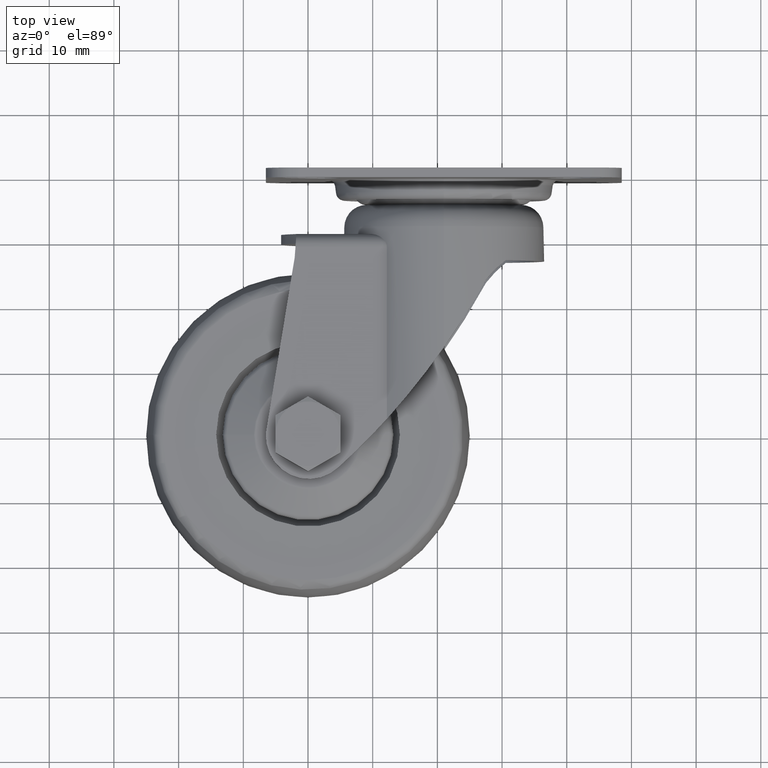
[diagram: clean part render]
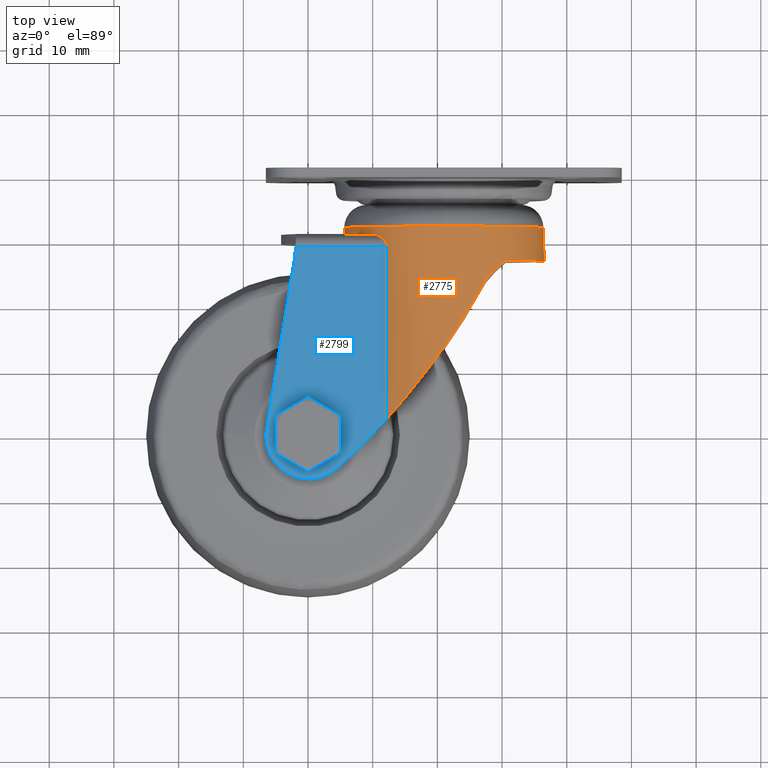
[diagram: same view with the hole feature highlighted: cylindrical wall and planar end face, labeled with their STEP entity ids]
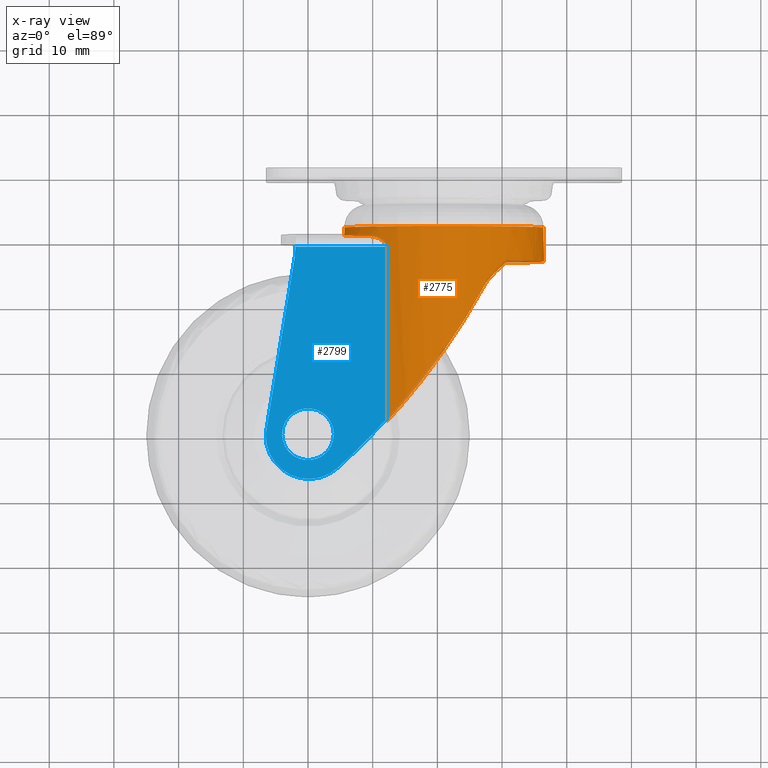
[diagram: x-ray of the same camera — body ghosted, the hole faces saturated]
A machine part, top view. The highlighted faces form one hole feature of diameter 31 mm: the cylindrical wall (entity #2775, orange) and its adjacent planar end face (entity #2799, blue) — they share a circular edge in the B-rep.
The next image is the same camera in x-ray (body ghosted, the hole faces saturated) — the bore reads through the body.
Wall:
#40=B_SPLINE_CURVE_WITH_KNOTS('',3,(#4908,#4909,#4910,#4911,#4912,#4913,
#4914,#4915),.UNSPECIFIED.,.F.,.F.,(4,2,2,4),(-7.70058691081264,-7.68832408808404,
-7.40377830427129,-7.25559388418982),.UNSPECIFIED.);
#42=B_SPLINE_CURVE_WITH_KNOTS('',3,(#4929,#4930,#4931,#4932,#4933,#4934,
#4935,#4936),.UNSPECIFIED.,.F.,.F.,(4,2,2,4),(-4.43775307126786,-4.28956865118639,
-4.00502286737364,-3.99276004464504),.UNSPECIFIED.);
#44=B_SPLINE_CURVE_WITH_KNOTS('',3,(#4946,#4947,#4948,#4949,#4950,#4951),
 .UNSPECIFIED.,.F.,.F.,(4,2,4),(-3.5105846150266,-2.92137387211645,-2.30902968361495),
 .UNSPECIFIED.);
#45=B_SPLINE_CURVE_WITH_KNOTS('',3,(#4953,#4954,#4955,#4956,#4957,#4958,
#4959,#4960),.UNSPECIFIED.,.F.,.F.,(4,2,2,4),(-4.90279050337366,-4.70047521491548,
-3.89516516282193,-3.5105846150266),.UNSPECIFIED.);
#48=B_SPLINE_CURVE_WITH_KNOTS('',3,(#4991,#4992,#4993,#4994,#4995,#4996,
#4997,#4998,#4999,#5000),.UNSPECIFIED.,.F.,.F.,(4,2,2,2,4),(-10.7383937355882,
-10.1260495470867,-9.15225825638122,-8.34694820428767,-8.14463291582949),
 .UNSPECIFIED.);
#51=B_SPLINE_CURVE_WITH_KNOTS('',3,(#5064,#5065,#5066,#5067,#5068,#5069,
#5070,#5071,#5072,#5073,#5074,#5075),.UNSPECIFIED.,.F.,.F.,(4,2,2,2,2,4),
(0.,0.038499645854395,0.0769992917087901,0.15399858341758,0.269915287120281,
0.385831990822983),.UNSPECIFIED.);
#52=B_SPLINE_CURVE_WITH_KNOTS('',3,(#5082,#5083,#5084,#5085,#5086,#5087,
#5088,#5089,#5090,#5091,#5092,#5093),.UNSPECIFIED.,.F.,.F.,(4,2,2,2,2,4),
(0.348422007007314,0.464338710710016,0.580255414412717,0.657254706121507,
0.695754351975902,0.734253997830297),.UNSPECIFIED.);
#198=LINE('',#5096,#327);
#199=LINE('',#5097,#328);
#200=LINE('',#5099,#329);
#327=VECTOR('',#3940,1000.);
#328=VECTOR('',#3941,1000.);
#329=VECTOR('',#3942,15.5);
#418=CYLINDRICAL_SURFACE('',#3259,15.5);
#638=FACE_OUTER_BOUND('',#836,.T.);
#836=EDGE_LOOP('',(#2245,#2246,#2247,#2248,#2249,#2250,#2251,#2252,#2253,
#2254,#2255,#2256,#2257,#2258));
#1032=CIRCLE('',#3255,15.5);
#1033=CIRCLE('',#3260,15.5);
#1034=CIRCLE('',#3261,15.5);
#1294=VERTEX_POINT('',#4897);
#1296=VERTEX_POINT('',#4906);
#1297=VERTEX_POINT('',#4917);
#1300=VERTEX_POINT('',#4927);
#1302=VERTEX_POINT('',#4945);
#1303=VERTEX_POINT('',#4952);
#1310=VERTEX_POINT('',#4989);
#1322=VERTEX_POINT('',#5055);
#1324=VERTEX_POINT('',#5059);
#1325=VERTEX_POINT('',#5063);
#1327=VERTEX_POINT('',#5080);
#1328=VERTEX_POINT('',#5098);
#1615=EDGE_CURVE('',#1296,#1294,#40,.T.);
#1619=EDGE_CURVE('',#1300,#1297,#42,.T.);
#1621=EDGE_CURVE('',#1302,#1297,#44,.T.);
#1622=EDGE_CURVE('',#1303,#1302,#45,.T.);
#1631=EDGE_CURVE('',#1296,#1310,#48,.T.);
#1651=EDGE_CURVE('',#1322,#1324,#1032,.F.);
#1652=EDGE_CURVE('',#1325,#1322,#51,.T.);
#1656=EDGE_CURVE('',#1324,#1327,#52,.T.);
#1657=EDGE_CURVE('',#1294,#1300,#1033,.T.);
#1658=EDGE_CURVE('',#1310,#1325,#198,.F.);
#1659=EDGE_CURVE('',#1327,#1303,#199,.T.);
#1660=EDGE_CURVE('',#1302,#1328,#200,.T.);
#1661=EDGE_CURVE('',#1328,#1328,#1034,.T.);
#2245=ORIENTED_EDGE('',*,*,#1657,.F.);
#2246=ORIENTED_EDGE('',*,*,#1615,.F.);
#2247=ORIENTED_EDGE('',*,*,#1631,.T.);
#2248=ORIENTED_EDGE('',*,*,#1658,.T.);
#2249=ORIENTED_EDGE('',*,*,#1652,.T.);
#2250=ORIENTED_EDGE('',*,*,#1651,.T.);
#2251=ORIENTED_EDGE('',*,*,#1656,.T.);
#2252=ORIENTED_EDGE('',*,*,#1659,.T.);
#2253=ORIENTED_EDGE('',*,*,#1622,.T.);
#2254=ORIENTED_EDGE('',*,*,#1660,.T.);
#2255=ORIENTED_EDGE('',*,*,#1661,.T.);
#2256=ORIENTED_EDGE('',*,*,#1660,.F.);
#2257=ORIENTED_EDGE('',*,*,#1621,.T.);
#2258=ORIENTED_EDGE('',*,*,#1619,.F.);
#2775=ADVANCED_FACE('',(#638),#418,.T.);
#3255=AXIS2_PLACEMENT_3D('',#5061,#3926,#3927);
#3259=AXIS2_PLACEMENT_3D('',#5094,#3936,#3937);
#3260=AXIS2_PLACEMENT_3D('',#5095,#3938,#3939);
#3261=AXIS2_PLACEMENT_3D('',#5100,#3943,#3944);
#3926=DIRECTION('center_axis',(0.,-1.,0.));
#3927=DIRECTION('ref_axis',(0.,0.,-1.));
#3936=DIRECTION('center_axis',(0.,-1.,0.));
#3937=DIRECTION('ref_axis',(0.,0.,-1.));
#3938=DIRECTION('center_axis',(0.,-1.,0.));
#3939=DIRECTION('ref_axis',(0.,0.,-1.));
#3940=DIRECTION('',(0.,-1.,0.));
#3941=DIRECTION('',(0.,-1.,0.));
#3942=DIRECTION('',(0.,1.,0.));
#3943=DIRECTION('center_axis',(0.,-1.,0.));
#3944=DIRECTION('ref_axis',(0.,0.,-1.));
#4897=CARTESIAN_POINT('',(30.56,26.93,-12.2006721126338));
#4906=CARTESIAN_POINT('',(27.5044218475587,23.8775764355235,-14.0692038306722));
#4908=CARTESIAN_POINT('Ctrl Pts',(27.5044218475586,23.8775764355236,-14.0692038306722));
#4909=CARTESIAN_POINT('Ctrl Pts',(27.5285332333845,23.9088010045437,-14.0580567446944));
#4910=CARTESIAN_POINT('Ctrl Pts',(27.552699437592,23.9398701399925,-14.0468090809169));
#4911=CARTESIAN_POINT('Ctrl Pts',(28.1388613394566,24.6880727293458,-13.7721377859539));
#4912=CARTESIAN_POINT('Ctrl Pts',(28.802456226853,25.4053601392409,-13.4179789251754));
#4913=CARTESIAN_POINT('Ctrl Pts',(29.8444249582645,26.3558513522208,-12.7360900512621));
#4914=CARTESIAN_POINT('Ctrl Pts',(30.2065595296403,26.6576581396606,-12.4776151257273));
#4915=CARTESIAN_POINT('Ctrl Pts',(30.56,26.9300000000001,-12.2006721126338));
#4917=CARTESIAN_POINT('',(27.5044218475587,23.8775764355235,14.0692038306722));
#4927=CARTESIAN_POINT('',(30.56,26.93,12.2006721126338));
#4929=CARTESIAN_POINT('Ctrl Pts',(30.56,26.9300000000001,12.2006721126338));
#4930=CARTESIAN_POINT('Ctrl Pts',(30.2065595296403,26.6576581396606,12.4776151257273));
#4931=CARTESIAN_POINT('Ctrl Pts',(29.8444249582645,26.3558513522208,12.7360900512621));
#4932=CARTESIAN_POINT('Ctrl Pts',(28.802456226853,25.4053601392409,13.4179789251754));
#4933=CARTESIAN_POINT('Ctrl Pts',(28.1388613394566,24.6880727293458,13.7721377859539));
#4934=CARTESIAN_POINT('Ctrl Pts',(27.552699437592,23.9398701399925,14.0468090809169));
#4935=CARTESIAN_POINT('Ctrl Pts',(27.5285332333845,23.9088010045437,14.0580567446944));
#4936=CARTESIAN_POINT('Ctrl Pts',(27.5044218475586,23.8775764355236,14.0692038306722));
#4945=CARTESIAN_POINT('',(20.9999999993719,13.4172627564216,15.5));
#4946=CARTESIAN_POINT('Ctrl Pts',(20.9999999987439,13.4172627564216,15.5));
#4947=CARTESIAN_POINT('Ctrl Pts',(22.1455090427555,15.0519060120486,15.5000000000928));
#4948=CARTESIAN_POINT('Ctrl Pts',(23.2605521457565,16.7365953137142,15.3733256528201));
#4949=CARTESIAN_POINT('Ctrl Pts',(25.4415940204694,20.2354447913942,14.8935388269375));
#4950=CARTESIAN_POINT('Ctrl Pts',(26.5038776426646,22.0520611694618,14.5317716962094));
#4951=CARTESIAN_POINT('Ctrl Pts',(27.5044218475587,23.8775764355235,14.0692038306722));
#4952=CARTESIAN_POINT('',(12.1859487180979,2.3878826457038,12.75));
#4953=CARTESIAN_POINT('Ctrl Pts',(12.1859487180979,2.38788264570376,12.75));
#4954=CARTESIAN_POINT('Ctrl Pts',(12.6216812101643,2.86778718234861,13.0512210611972));
#4955=CARTESIAN_POINT('Ctrl Pts',(13.0652358145193,3.36471401795708,13.3247815701268));
#4956=CARTESIAN_POINT('Ctrl Pts',(15.2899674535305,5.9041693122294,14.552298255316));
#4957=CARTESIAN_POINT('Ctrl Pts',(17.1142546403677,8.14957958388962,15.0929511040974));
#4958=CARTESIAN_POINT('Ctrl Pts',(19.4917425789098,11.304649352153,15.4459913450654));
#4959=CARTESIAN_POINT('Ctrl Pts',(20.2523210045106,12.3503236242631,15.4999999999394));
#4960=CARTESIAN_POINT('Ctrl Pts',(20.9999999987439,13.4172627564216,15.5));
#4989=CARTESIAN_POINT('',(12.1859487180979,2.38788264570382,-12.75));
#4991=CARTESIAN_POINT('Ctrl Pts',(27.5044218475587,23.8775764355235,-14.0692038306722));
#4992=CARTESIAN_POINT('Ctrl Pts',(26.5038776426646,22.0520611694618,-14.5317716962094));
#4993=CARTESIAN_POINT('Ctrl Pts',(25.4415940204694,20.2354447913942,-14.8935388269375));
#4994=CARTESIAN_POINT('Ctrl Pts',(22.5624681405947,15.6167218783827,-15.5268905673314));
#4995=CARTESIAN_POINT('Ctrl Pts',(20.6690284862521,12.8669786976118,-15.6208100239232));
#4996=CARTESIAN_POINT('Ctrl Pts',(17.1142546403677,8.14957958388962,-15.0929511040974));
#4997=CARTESIAN_POINT('Ctrl Pts',(15.2899674535305,5.9041693122294,-14.552298255316));
#4998=CARTESIAN_POINT('Ctrl Pts',(13.0652358145193,3.36471401795709,-13.3247815701268));
#4999=CARTESIAN_POINT('Ctrl Pts',(12.6216812101643,2.86778718234862,-13.0512210611972));
#5000=CARTESIAN_POINT('Ctrl Pts',(12.1859487180979,2.38788264570377,-12.75));
#5055=CARTESIAN_POINT('',(9.83364428293636,31.,-10.75));
#5059=CARTESIAN_POINT('',(9.83364428293636,31.,10.75));
#5061=CARTESIAN_POINT('Origin',(21.,31.,0.));
#5063=CARTESIAN_POINT('',(12.1859487180979,29.,-12.75));
#5064=CARTESIAN_POINT('Ctrl Pts',(12.1859487180979,29.,-12.75));
#5065=CARTESIAN_POINT('Ctrl Pts',(12.1859487180979,29.128332152848,-12.75));
#5066=CARTESIAN_POINT('Ctrl Pts',(12.1678026495399,29.255757246953,-12.7375058505815));
#5067=CARTESIAN_POINT('Ctrl Pts',(12.0999740308388,29.5012907960277,-12.6902006509722));
#5068=CARTESIAN_POINT('Ctrl Pts',(12.0503054015867,29.6194003899002,-12.6553755537453));
#5069=CARTESIAN_POINT('Ctrl Pts',(11.8682248250935,29.9512045140775,-12.52529192965));
#5070=CARTESIAN_POINT('Ctrl Pts',(11.7020836389462,30.1424750665249,-12.4033101089268));
#5071=CARTESIAN_POINT('Ctrl Pts',(11.2889316527561,30.5185080688251,-12.0848416060441));
#5072=CARTESIAN_POINT('Ctrl Pts',(10.9954649989297,30.6982433000349,-11.8455505872291));
#5073=CARTESIAN_POINT('Ctrl Pts',(10.4018511002202,30.9396246182674,-11.3175540423678));
#5074=CARTESIAN_POINT('Ctrl Pts',(10.1016237592383,31.,-11.0283585262567));
#5075=CARTESIAN_POINT('Ctrl Pts',(9.83364428293635,31.,-10.75));
#5080=CARTESIAN_POINT('',(12.1859487180979,29.,12.75));
#5082=CARTESIAN_POINT('Ctrl Pts',(9.83364428293635,31.,10.75));
#5083=CARTESIAN_POINT('Ctrl Pts',(10.1016237592383,31.,11.0283585262567));
#5084=CARTESIAN_POINT('Ctrl Pts',(10.4018511002202,30.9396246182674,11.3175540423678));
#5085=CARTESIAN_POINT('Ctrl Pts',(10.9954649989297,30.6982433000349,11.8455505872291));
#5086=CARTESIAN_POINT('Ctrl Pts',(11.2889316527561,30.5185080688251,12.0848416060441));
#5087=CARTESIAN_POINT('Ctrl Pts',(11.7020836389462,30.1424750665249,12.4033101089268));
#5088=CARTESIAN_POINT('Ctrl Pts',(11.8682248250935,29.9512045140775,12.52529192965));
#5089=CARTESIAN_POINT('Ctrl Pts',(12.0503054015867,29.6194003899002,12.6553755537453));
#5090=CARTESIAN_POINT('Ctrl Pts',(12.0999740308388,29.5012907960277,12.6902006509722));
#5091=CARTESIAN_POINT('Ctrl Pts',(12.1678026495399,29.255757246953,12.7375058505815));
#5092=CARTESIAN_POINT('Ctrl Pts',(12.1859487180979,29.128332152848,12.75));
#5093=CARTESIAN_POINT('Ctrl Pts',(12.1859487180979,29.,12.75));
#5094=CARTESIAN_POINT('Origin',(21.,-7.88,0.));
#5095=CARTESIAN_POINT('Origin',(21.,26.93,0.));
#5096=CARTESIAN_POINT('',(12.1859487180979,-7.88,-12.75));
#5097=CARTESIAN_POINT('',(12.1859487180979,-7.88,12.75));
#5098=CARTESIAN_POINT('',(21.,32.162,15.5));
#5099=CARTESIAN_POINT('',(21.,-7.88,15.5));
#5100=CARTESIAN_POINT('Origin',(21.,32.162,0.));
End face:
#197=LINE('',#5081,#326);
#199=LINE('',#5097,#328);
#228=LINE('',#5245,#357);
#229=LINE('',#5246,#358);
#326=VECTOR('',#3935,1000.);
#328=VECTOR('',#3941,1000.);
#357=VECTOR('',#4104,1000.);
#358=VECTOR('',#4105,1000.);
#467=FACE_BOUND('',#869,.T.);
#518=PLANE('',#3326);
#662=FACE_OUTER_BOUND('',#868,.T.);
#868=EDGE_LOOP('',(#2372,#2373,#2374,#2375,#2376,#2377));
#869=EDGE_LOOP('',(#2378));
#1023=CIRCLE('',#3239,112.17);
#1076=CIRCLE('',#3327,6.67);
#1077=CIRCLE('',#3328,4.);
#1303=VERTEX_POINT('',#4952);
#1304=VERTEX_POINT('',#4961);
#1326=VERTEX_POINT('',#5078);
#1327=VERTEX_POINT('',#5080);
#1378=VERTEX_POINT('',#5242);
#1379=VERTEX_POINT('',#5244);
#1380=VERTEX_POINT('',#5247);
#1623=EDGE_CURVE('',#1304,#1303,#1023,.F.);
#1655=EDGE_CURVE('',#1327,#1326,#197,.T.);
#1659=EDGE_CURVE('',#1327,#1303,#199,.T.);
#1730=EDGE_CURVE('',#1378,#1304,#1076,.F.);
#1731=EDGE_CURVE('',#1379,#1326,#228,.T.);
#1732=EDGE_CURVE('',#1378,#1379,#229,.T.);
#1733=EDGE_CURVE('',#1380,#1380,#1077,.F.);
#2372=ORIENTED_EDGE('',*,*,#1730,.T.);
#2373=ORIENTED_EDGE('',*,*,#1623,.T.);
#2374=ORIENTED_EDGE('',*,*,#1659,.F.);
#2375=ORIENTED_EDGE('',*,*,#1655,.T.);
#2376=ORIENTED_EDGE('',*,*,#1731,.F.);
#2377=ORIENTED_EDGE('',*,*,#1732,.F.);
#2378=ORIENTED_EDGE('',*,*,#1733,.F.);
#2799=ADVANCED_FACE('',(#662,#467),#518,.F.);
#3239=AXIS2_PLACEMENT_3D('',#4962,#3881,#3882);
#3326=AXIS2_PLACEMENT_3D('',#5241,#4100,#4101);
#3327=AXIS2_PLACEMENT_3D('',#5243,#4102,#4103);
#3328=AXIS2_PLACEMENT_3D('',#5248,#4106,#4107);
#3881=DIRECTION('center_axis',(0.,0.,-1.));
#3882=DIRECTION('ref_axis',(-1.,0.,0.));
#3935=DIRECTION('',(-1.,0.,0.));
#3941=DIRECTION('',(0.,-1.,0.));
#4100=DIRECTION('center_axis',(0.,0.,-1.));
#4101=DIRECTION('ref_axis',(-1.,0.,0.));
#4102=DIRECTION('center_axis',(0.,0.,-1.));
#4103=DIRECTION('ref_axis',(-1.,0.,0.));
#4104=DIRECTION('',(0.0714423224441843,0.997444732586112,0.));
#4105=DIRECTION('',(0.161991978350553,0.986792074831407,0.));
#4106=DIRECTION('center_axis',(0.,0.,-1.));
#4107=DIRECTION('ref_axis',(-1.,0.,0.));
#4952=CARTESIAN_POINT('',(12.1859487180979,2.3878826457038,12.75));
#4961=CARTESIAN_POINT('',(4.72797619207034,-5.08681675346255,12.75));
#4962=CARTESIAN_POINT('Origin',(-70.86,77.7899999999999,12.75));
#5078=CARTESIAN_POINT('',(-1.93325068870523,29.,12.75));
#5080=CARTESIAN_POINT('',(12.1859487180979,29.,12.75));
#5081=CARTESIAN_POINT('',(24.5,29.,12.75));
#5097=CARTESIAN_POINT('',(12.1859487180979,-7.88,12.75));
#5241=CARTESIAN_POINT('Origin',(24.5,29.,12.75));
#5242=CARTESIAN_POINT('',(-6.52,0.1405,12.75));
#5243=CARTESIAN_POINT('Origin',(0.138759409224045,-0.246569929173325,12.75));
#5244=CARTESIAN_POINT('',(-2.05,27.37,12.75));
#5245=CARTESIAN_POINT('',(-1.79833523349315,30.8836273169995,12.75));
#5246=CARTESIAN_POINT('',(-1.09273138943564,33.2013077475083,12.75));
#5247=CARTESIAN_POINT('',(4.,-4.89858719658941E-16,12.75));
#5248=CARTESIAN_POINT('Origin',(0.,0.,12.75));